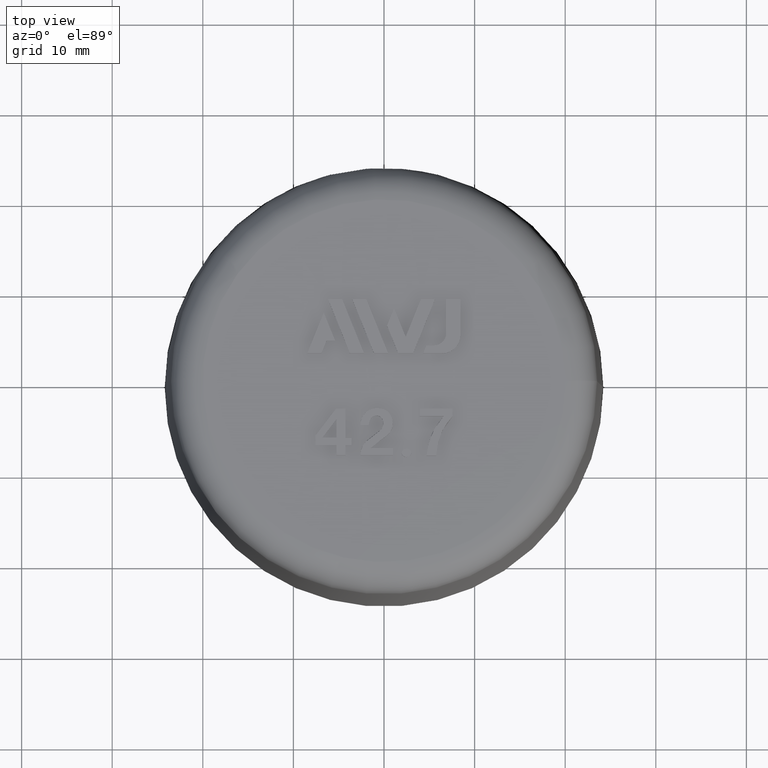
[diagram: clean part render]
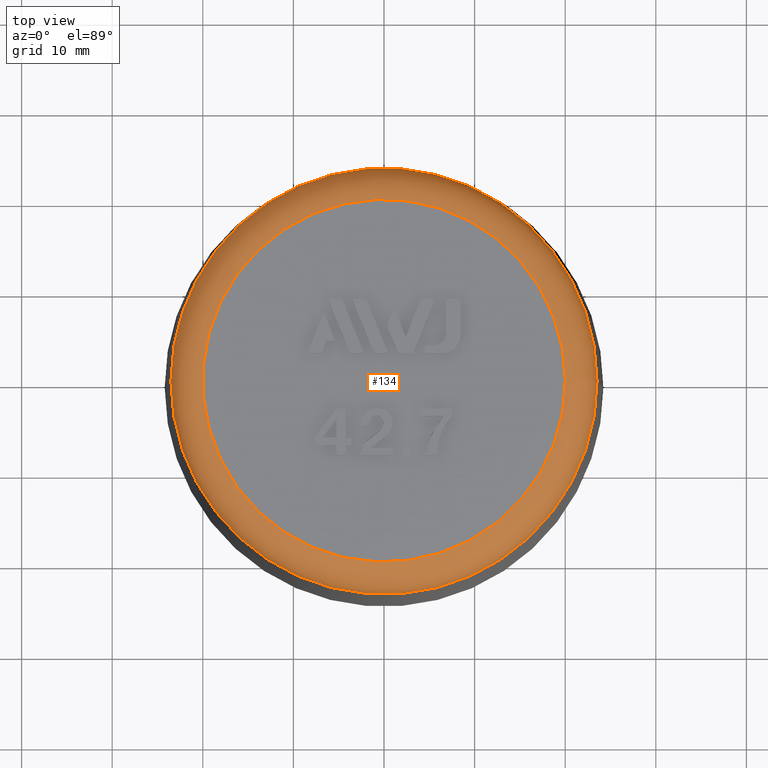
[diagram: same view with one face highlighted and labeled with its STEP entity id]
A machine part, top view. The second image highlights one B-rep face of the part: STEP entity #134.
In plain terms, the highlighted toroidal blend (fillet) surface has major radius 20.0182 mm and minor (blend) radius 3.5 mm.
Its self-contained STEP definition (entity closure, byte-faithful):
#134 = ADVANCED_FACE( '', ( #280, #281 ), #282, .T. );
#280 = FACE_OUTER_BOUND( '', #445, .T. );
#281 = FACE_OUTER_BOUND( '', #446, .T. );
#282 = TOROIDAL_SURFACE( '', #447, 20.0182014383200, 3.50000000000000 );
#445 = EDGE_LOOP( '', ( #961 ) );
#446 = EDGE_LOOP( '', ( #962 ) );
#447 = AXIS2_PLACEMENT_3D( '', #963, #964, #965 );
#961 = ORIENTED_EDGE( '', *, *, #1128, .F. );
#962 = ORIENTED_EDGE( '', *, *, #1253, .T. );
#963 = CARTESIAN_POINT( '', ( -2.38798238995364E-015, 0.000000000000000, 39.0000000000000 ) );
#964 = DIRECTION( '', ( -6.12303176911189E-017, 0.000000000000000, 1.00000000000000 ) );
#965 = DIRECTION( '', ( 1.00000000000000, 0.000000000000000, 6.12303176911189E-017 ) );
#1128 = EDGE_CURVE( '', #1343, #1343, #1344, .T. );
#1253 = EDGE_CURVE( '', #1542, #1542, #1543, .T. );
#1343 = VERTEX_POINT( '', #1737 );
#1344 = CIRCLE( '', #1738, 20.0182014383200 );
#1542 = VERTEX_POINT( '', #2116 );
#1543 = CIRCLE( '', #2117, 23.5176683713673 );
#1737 = CARTESIAN_POINT( '', ( 20.0182014383200, 0.000000000000000, 42.5000000000000 ) );
#1738 = AXIS2_PLACEMENT_3D( '', #2154, #2155, #2156 );
#2116 = CARTESIAN_POINT( '', ( 23.5176683713673, 0.000000000000000, 39.0610834225305 ) );
#2117 = AXIS2_PLACEMENT_3D( '', #2267, #2268, #2269 );
#2154 = CARTESIAN_POINT( '', ( -2.60228850187255E-015, 0.000000000000000, 42.5000000000000 ) );
#2155 = DIRECTION( '', ( -6.12303176911189E-017, 0.000000000000000, 1.00000000000000 ) );
#2156 = DIRECTION( '', ( 1.00000000000000, 0.000000000000000, 6.12303176911189E-017 ) );
#2267 = CARTESIAN_POINT( '', ( -2.39172254732084E-015, 0.000000000000000, 39.0610834225305 ) );
#2268 = DIRECTION( '', ( -6.12303176911189E-017, 0.000000000000000, 1.00000000000000 ) );
#2269 = DIRECTION( '', ( 1.00000000000000, 0.000000000000000, 6.12303176911189E-017 ) );